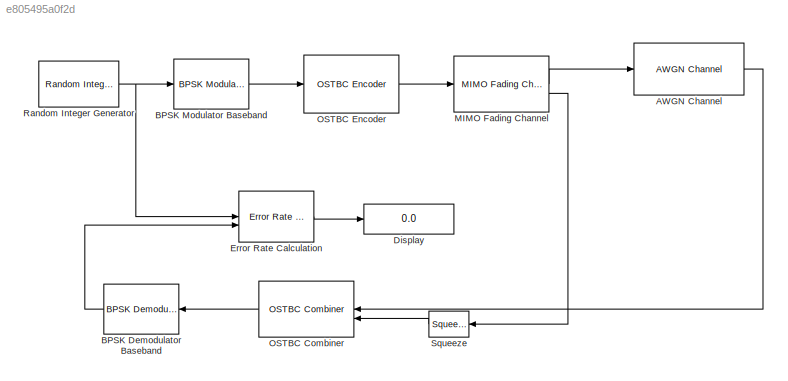
MODEL slx_e805495a0f2d
KIND model
CONFIG AbsTol = auto
CONFIG EnableMultiTasking = off
CONFIG FixedStep = auto
CONFIG MaxStep = auto
CONFIG MinStep = auto
CONFIG RelTol = 1e-3
CONFIG SampleTimeConstraint = Unconstrained
CONFIG SolverName = VariableStepAuto
CONFIG StartTime = 0.0
CONFIG StopTime = 10.0
BLOCK [Reference] AWGN Channel  REF=commchan3/AWGN
Channel
  SourceBlock = commchan3/AWGN\nChannel
  SourceType = AWGN Channel
BLOCK [Reference] BPSK Demodulator Baseband  REF=commdigbbndpm3/BPSK
Demodulator
Baseband
  LibrarySourceBlock = commhdldigbbndpm/BPSK\nDemodulator\nBaseband
  SourceBlock = commdigbbndpm3/BPSK\nDemodulator\nBaseband
  SourceType = BPSK Demodulator Baseband
BLOCK [Reference] BPSK Modulator Baseband  REF=commdigbbndpm3/BPSK
Modulator
Baseband
  SourceBlock = commdigbbndpm3/BPSK\nModulator\nBaseband
  SourceType = BPSK Modulator Baseband
BLOCK [Display] Display
  Decimation = 1
BLOCK [Reference] Error Rate Calculation  REF=commsink2/Error Rate
Calculation
  SourceBlock = commsink2/Error Rate\nCalculation
  SourceType = Error Rate Calculation
BLOCK [Reference] MIMO Fading Channel  REF=commchan3/MIMO Fading Channel
  LibrarySourceBlock = commmimo/MIMO Fading Channel
  SourceBlock = commchan3/MIMO Fading Channel
  SourceType = MIMO Fading Channel
BLOCK [Reference] OSTBC Combiner  REF=commmimo/OSTBC Combiner
  SourceBlock = commmimo/OSTBC Combiner
  SourceType = OSTBC Combiner
BLOCK [Reference] OSTBC Encoder  REF=commmimo/OSTBC Encoder
  SourceBlock = commmimo/OSTBC Encoder
  SourceType = OSTBC Encoder
BLOCK [Reference] Random Integer Generator  REF=commrandsrc3/Random Integer
Generator
  SourceBlock = commrandsrc3/Random Integer\nGenerator
  SourceType = Random Integer Generator
BLOCK [Squeeze] Squeeze
LINE AWGN Channel:1 -> OSTBC Combiner:1
LINE BPSK Demodulator Baseband:1 -> Error Rate Calculation:2
LINE BPSK Modulator Baseband:1 -> OSTBC Encoder:1
LINE Error Rate Calculation:1 -> Display:1
LINE MIMO Fading Channel:1 -> AWGN Channel:1
LINE MIMO Fading Channel:2 -> Squeeze:1
LINE OSTBC Combiner:1 -> BPSK Demodulator Baseband:1
LINE OSTBC Encoder:1 -> MIMO Fading Channel:1
NET Random Integer Generator:1 -> BPSK Modulator Baseband:1, Error Rate Calculation:1
LINE Squeeze:1 -> OSTBC Combiner:2
note: NET lines group one-source signal fan-out (src -> all destinations, sorted); 1:1 wires keep LINE
